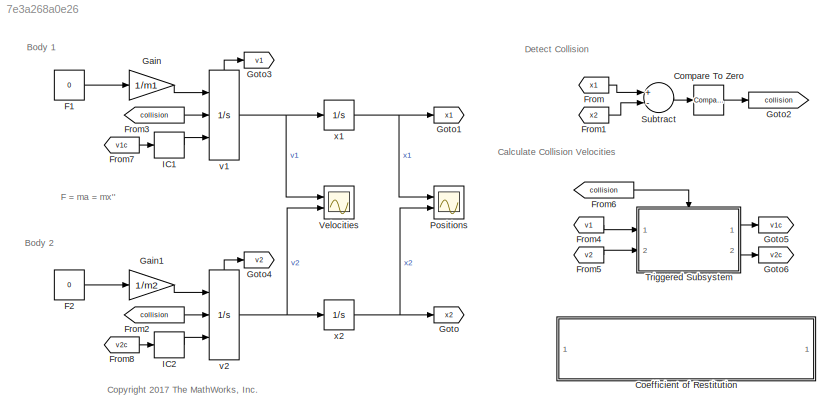
MODEL slx_7e3a268a0e26
KIND model
CONFIG AbsTol = auto
CONFIG EnableMultiTasking = off
CONFIG FixedStep = auto
CONFIG MaxStep = auto
CONFIG MinStep = auto
CONFIG PreLoadFcn = % Body 1 properties\nm1 = 1;\nv1 = 1;\nx1 = 0;\n\n% Body 2 properties\nm2 = 5;\nv2 = -0.1;\nx2 = 5;\n\n% Coefficient of restitution\n% 0 = inelastic, 1 = elastic\nCr = 0.5;
CONFIG RelTol = 1e-3
CONFIG SampleTimeConstraint = Unconstrained
CONFIG Solver = VariableStepAuto
CONFIG SolverName = VariableStepAuto
CONFIG StartTime = 0.0
CONFIG StopTime = 10.0
BLOCK [SubSystem] Coefficient of Restitution
  DialogController = hmiCreateDDGDialog
  IsWebBlock = on
  MaskHideContents = on
  Ports = []
  RequestExecContextInheritance = off
  Variant = off
BLOCK [Reference] Compare To Zero  REF=simulink/Logic and Bit
Operations/Compare
To Zero
  Ports = [1, 1]
  SourceBlock = simulink/Logic and Bit\nOperations/Compare\nTo Zero
  SourceProductBaseCode = SL
  SourceProductName = Simulink
  SourceType = Compare To Zero
BLOCK [Constant] F1
  Value = 0
BLOCK [Constant] F2
  Value = 0
BLOCK [From] From
  GotoTag = x1
BLOCK [From] From1
  GotoTag = x2
BLOCK [From] From2
  GotoTag = collision
BLOCK [From] From3
  GotoTag = collision
BLOCK [From] From4
  GotoTag = v1
BLOCK [From] From5
  GotoTag = v2
BLOCK [From] From6
  GotoTag = collision
BLOCK [From] From7
  GotoTag = v1c
BLOCK [From] From8
  GotoTag = v2c
BLOCK [Gain] Gain
  Gain = 1/m1
  OutDataTypeStr = Inherit: Inherit via internal rule
  ParamDataTypeStr = Inherit: Inherit via internal rule
  SaturateOnIntegerOverflow = off
BLOCK [Gain] Gain1
  Gain = 1/m2
  OutDataTypeStr = Inherit: Inherit via internal rule
  ParamDataTypeStr = Inherit: Inherit via internal rule
  SaturateOnIntegerOverflow = off
BLOCK [Goto] Goto
  GotoTag = x2
BLOCK [Goto] Goto1
  GotoTag = x1
BLOCK [Goto] Goto2
  GotoTag = collision
BLOCK [Goto] Goto3
  GotoTag = v1
BLOCK [Goto] Goto4
  GotoTag = v2
BLOCK [Goto] Goto5
  GotoTag = v1c
BLOCK [Goto] Goto6
  GotoTag = v2c
BLOCK [InitialCondition] IC1
  Value = v1
BLOCK [InitialCondition] IC2
  Value = v2
BLOCK [Scope] Positions
  NumInputPorts = 2
  Ports = [2]
  ScopeSpecificationString = Simulink.scopes.TimeScopeBlockCfg('CurrentConfiguration', extmgr.ConfigurationSet(extmgr.Configuration('Core','General UI',true),extmgr.Configuration('Core','Source UI',true),extmgr.Configuration('Sources','WiredSimulink',true,'DataLoggingVariableName','ScopeData1'),extmgr.Configuration('Visuals','Time Domain',true,'SerializedDisplays',{struct('MinYLimReal','-0.6875','MaxYLimReal','6.1875','YLabel...<+1412ch>
BLOCK [Sum] Subtract
  InputSameDT = off
  Inputs = +-
  OutDataTypeStr = Inherit: Inherit via internal rule
  Ports = [2, 1]
  SaturateOnIntegerOverflow = off
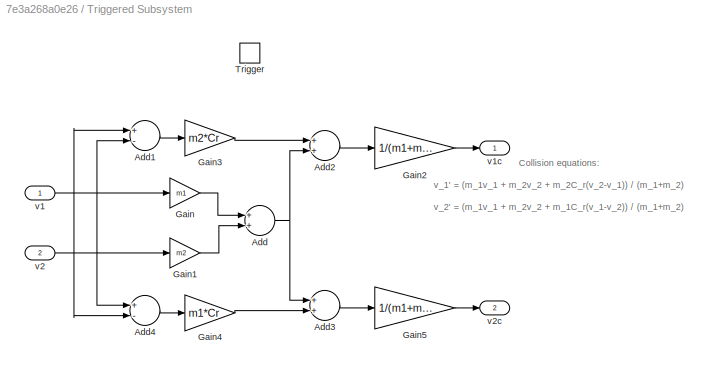
BLOCK [SubSystem] Triggered Subsystem
  Ports = [2, 2, 0, 1]
  RequestExecContextInheritance = off
  TreatAsAtomicUnit = on
  Variant = off
BLOCK [Sum] Triggered Subsystem/Add
  InputSameDT = off
  OutDataTypeStr = Inherit: Inherit via internal rule
  Ports = [2, 1]
  SaturateOnIntegerOverflow = off
BLOCK [Sum] Triggered Subsystem/Add1
  InputSameDT = off
  Inputs = +-
  OutDataTypeStr = Inherit: Inherit via internal rule
  Ports = [2, 1]
  SaturateOnIntegerOverflow = off
BLOCK [Sum] Triggered Subsystem/Add2
  InputSameDT = off
  OutDataTypeStr = Inherit: Inherit via internal rule
  Ports = [2, 1]
  SaturateOnIntegerOverflow = off
BLOCK [Sum] Triggered Subsystem/Add3
  InputSameDT = off
  OutDataTypeStr = Inherit: Inherit via internal rule
  Ports = [2, 1]
  SaturateOnIntegerOverflow = off
BLOCK [Sum] Triggered Subsystem/Add4
  InputSameDT = off
  Inputs = +-
  OutDataTypeStr = Inherit: Inherit via internal rule
  Ports = [2, 1]
  SaturateOnIntegerOverflow = off
BLOCK [Gain] Triggered Subsystem/Gain
  Gain = m1
  OutDataTypeStr = Inherit: Inherit via internal rule
  ParamDataTypeStr = Inherit: Inherit via internal rule
  SaturateOnIntegerOverflow = off
BLOCK [Gain] Triggered Subsystem/Gain1
  Gain = m2
  OutDataTypeStr = Inherit: Inherit via internal rule
  ParamDataTypeStr = Inherit: Inherit via internal rule
  SaturateOnIntegerOverflow = off
BLOCK [Gain] Triggered Subsystem/Gain2
  Gain = 1/(m1+m2)
  OutDataTypeStr = Inherit: Inherit via internal rule
  ParamDataTypeStr = Inherit: Inherit via internal rule
  SaturateOnIntegerOverflow = off
BLOCK [Gain] Triggered Subsystem/Gain3
  Gain = m2*Cr
  OutDataTypeStr = Inherit: Inherit via internal rule
  ParamDataTypeStr = Inherit: Inherit via internal rule
  SaturateOnIntegerOverflow = off
BLOCK [Gain] Triggered Subsystem/Gain4
  Gain = m1*Cr
  OutDataTypeStr = Inherit: Inherit via internal rule
  ParamDataTypeStr = Inherit: Inherit via internal rule
  SaturateOnIntegerOverflow = off
BLOCK [Gain] Triggered Subsystem/Gain5
  Gain = 1/(m1+m2)
  OutDataTypeStr = Inherit: Inherit via internal rule
  ParamDataTypeStr = Inherit: Inherit via internal rule
  SaturateOnIntegerOverflow = off
BLOCK [TriggerPort] Triggered Subsystem/Trigger
  Ports = []
  StatesWhenEnabling = held
  VariantControl = Variant
BLOCK [Inport] Triggered Subsystem/v1
  IconDisplay = Port number
BLOCK [Outport] Triggered Subsystem/v1c
  IconDisplay = Port number
BLOCK [Inport] Triggered Subsystem/v2
  IconDisplay = Port number
  Port = 2
BLOCK [Outport] Triggered Subsystem/v2c
  IconDisplay = Port number
  Port = 2
BLOCK [Scope] Velocities
  NumInputPorts = 2
  Ports = [2]
  ScopeSpecificationString = Simulink.scopes.TimeScopeBlockCfg('CurrentConfiguration', extmgr.ConfigurationSet(extmgr.Configuration('Core','General UI',true),extmgr.Configuration('Core','Source UI',true),extmgr.Configuration('Sources','WiredSimulink',true),extmgr.Configuration('Visuals','Time Domain',true,'SerializedDisplays',{struct('MinYLimReal','-0.54688','MaxYLimReal','1.17188','YLabelReal','','MinYLimMag','0.00000','MaxY...<+1381ch>
BLOCK [Integrator] v1
  ExternalReset = rising
  InitialCondition = v1
  InitialConditionSource = external
  Ports = [3, 1, 0, 0, 1]
  ShowStatePort = on
BLOCK [Integrator] v2
  ExternalReset = rising
  InitialCondition = v2
  InitialConditionSource = external
  Ports = [3, 1, 0, 0, 1]
  ShowStatePort = on
BLOCK [Integrator] x1
  InitialCondition = x1
  Ports = [1, 1]
BLOCK [Integrator] x2
  InitialCondition = x2
  Ports = [1, 1]
ANNOTATION (root): <copyright redacted>
ANNOTATION (root): Body 1
ANNOTATION (root): Body 2
ANNOTATION (root): Calculate Collision Velocities
ANNOTATION (root): Detect Collision
ANNOTATION (root): F = ma = mx''
ANNOTATION Triggered Subsystem: Collision equations: v_1' = (m_1v_1 + m_2v_2 + m_2C_r(v_2-v_1)) / (m_1+m_2) v_2' = (m_1v_1 + m_2v_2 + m_1C_r(v_1-v_2)) / (m_1+m_2)
LINE Compare To Zero:1 -> Goto2:1
LINE F1:1 -> Gain:1
LINE F2:1 -> Gain1:1
LINE From1:1 -> Subtract:2
LINE From2:1 -> v2:2
LINE From3:1 -> v1:2
LINE From4:1 -> Triggered Subsystem:1
LINE From5:1 -> Triggered Subsystem:2
LINE From6:1 -> Triggered Subsystem:trigger
LINE From7:1 -> IC1:1
LINE From8:1 -> IC2:1
LINE From:1 -> Subtract:1
LINE Gain1:1 -> v2:1
LINE Gain:1 -> v1:1
LINE IC1:1 -> v1:3
LINE IC2:1 -> v2:3
LINE Subtract:1 -> Compare To Zero:1
LINE Triggered Subsystem/Add1:1 -> Triggered Subsystem/Gain3:1
LINE Triggered Subsystem/Add2:1 -> Triggered Subsystem/Gain2:1
LINE Triggered Subsystem/Add3:1 -> Triggered Subsystem/Gain5:1
LINE Triggered Subsystem/Add4:1 -> Triggered Subsystem/Gain4:1
NET Triggered Subsystem/Add:1 -> Triggered Subsystem/Add2:2, Triggered Subsystem/Add3:1
LINE Triggered Subsystem/Gain1:1 -> Triggered Subsystem/Add:2
LINE Triggered Subsystem/Gain2:1 -> Triggered Subsystem/v1c:1
LINE Triggered Subsystem/Gain3:1 -> Triggered Subsystem/Add2:1
LINE Triggered Subsystem/Gain4:1 -> Triggered Subsystem/Add3:2
LINE Triggered Subsystem/Gain5:1 -> Triggered Subsystem/v2c:1
LINE Triggered Subsystem/Gain:1 -> Triggered Subsystem/Add:1
NET Triggered Subsystem/v1:1 -> Triggered Subsystem/Add1:2, Triggered Subsystem/Add4:1, Triggered Subsystem/Gain:1
NET Triggered Subsystem/v2:1 -> Triggered Subsystem/Add1:1, Triggered Subsystem/Add4:2, Triggered Subsystem/Gain1:1
LINE Triggered Subsystem:1 -> Goto5:1
LINE Triggered Subsystem:2 -> Goto6:1
NET v1:1 -> Velocities:1, x1:1
LINE v1:state -> Goto3:1
NET v2:1 -> Velocities:2, x2:1
LINE v2:state -> Goto4:1
NET x1:1 -> Goto1:1, Positions:1
NET x2:1 -> Goto:1, Positions:2
note: NET lines group one-source signal fan-out (src -> all destinations, sorted); 1:1 wires keep LINE
